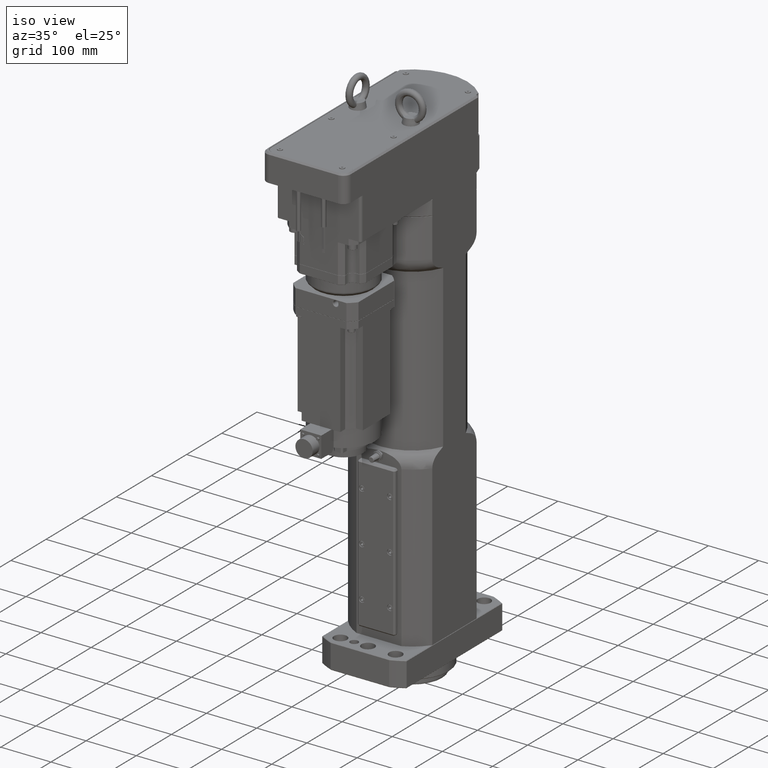
[diagram: clean part render]
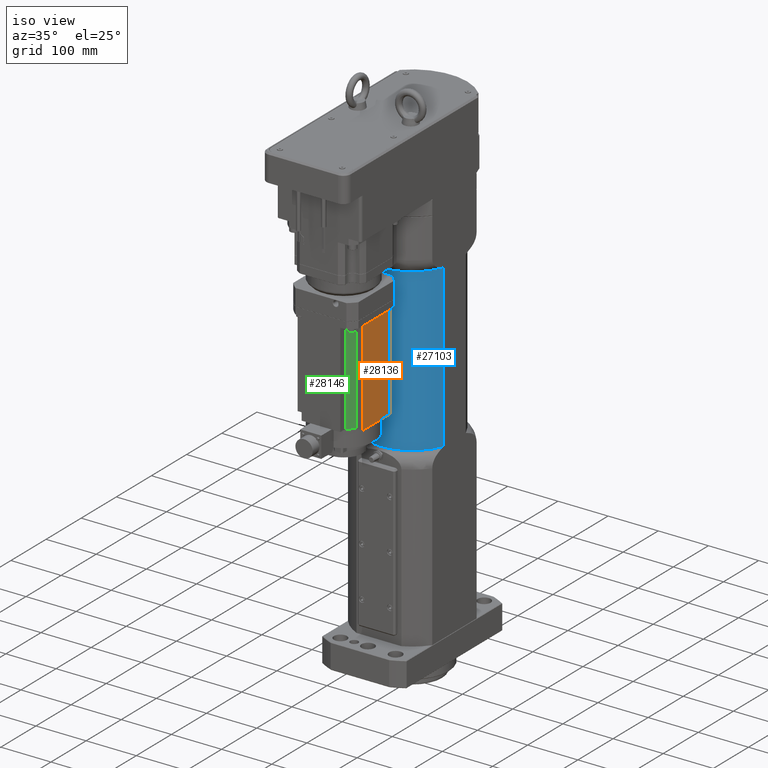
[diagram: same view with three faces highlighted in distinct colors, each labeled with its STEP entity id]
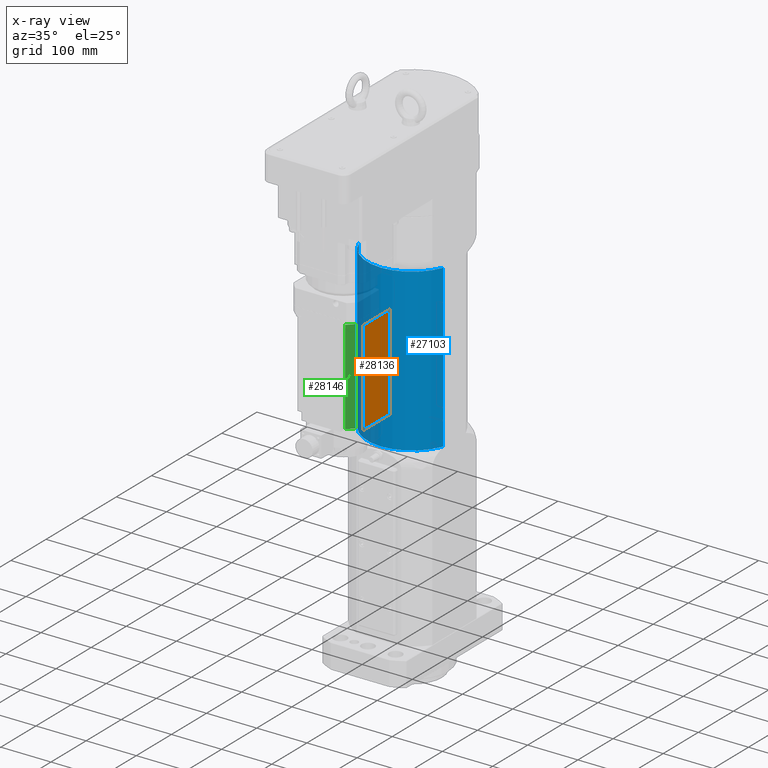
[diagram: x-ray of the same camera — body ghosted, the three highlighted faces saturated]
A machine part, iso view with three faces highlighted in distinct colors.
The next image is the same camera in x-ray (body ghosted, the three faces saturated) — at least one of them is partly hidden behind the body in this view.
Their STEP definitions:

[orange] entity #28136 — the highlighted planar face has unit normal (1, -0, 0).
#2405=LINE('',#47565,#4024);
#2426=LINE('',#47624,#4045);
#2427=LINE('',#47626,#4046);
#2428=LINE('',#47627,#4047);
#4024=VECTOR('',#36888,10.);
#4045=VECTOR('',#36949,10.);
#4046=VECTOR('',#36950,10.);
#4047=VECTOR('',#36951,10.);
#6477=FACE_OUTER_BOUND('',#8425,.T.);
#8425=EDGE_LOOP('',(#21893,#21894,#21895,#21896));
#12380=VERTEX_POINT('',#47562);
#12381=VERTEX_POINT('',#47564);
#12399=VERTEX_POINT('',#47623);
#12400=VERTEX_POINT('',#47625);
#15762=EDGE_CURVE('',#12381,#12380,#2405,.T.);
#15793=EDGE_CURVE('',#12380,#12399,#2426,.T.);
#15794=EDGE_CURVE('',#12400,#12399,#2427,.T.);
#15795=EDGE_CURVE('',#12400,#12381,#2428,.T.);
#21893=ORIENTED_EDGE('',*,*,#15793,.T.);
#21894=ORIENTED_EDGE('',*,*,#15794,.F.);
#21895=ORIENTED_EDGE('',*,*,#15795,.T.);
#21896=ORIENTED_EDGE('',*,*,#15762,.T.);
#25105=PLANE('',#30828);
#28136=ADVANCED_FACE('',(#6477),#25105,.T.);
#30828=AXIS2_PLACEMENT_3D('',#47622,#36947,#36948);
#36888=DIRECTION('',(-9.32436818060772E-16,-1.,-4.83468750875666E-30));
#36947=DIRECTION('center_axis',(1.,-9.32436818060772E-16,3.0399476265779E-15));
#36948=DIRECTION('ref_axis',(-1.4210854715202E-15,-1.,0.));
#36949=DIRECTION('',(3.0399476265779E-15,2.00012841675897E-30,-1.));
#36950=DIRECTION('',(-9.32436818060772E-16,-1.,-4.83468750875666E-30));
#36951=DIRECTION('',(-3.0399476265779E-15,-2.00012841675897E-30,1.));
#47562=CARTESIAN_POINT('',(64.9999999999957,-233.500000000004,684.999999999957));
#47564=CARTESIAN_POINT('',(64.9999999999958,-156.500000000004,684.999999999957));
#47565=CARTESIAN_POINT('',(64.9999999999958,-144.19399641775,684.999999999957));
#47622=CARTESIAN_POINT('Origin',(64.9999999999958,-144.19399641775,684.999999999957));
#47623=CARTESIAN_POINT('',(64.9999999999963,-233.500000000004,496.999999999957));
#47624=CARTESIAN_POINT('',(64.999999999996,-233.500000000004,590.999999999957));
#47625=CARTESIAN_POINT('',(64.9999999999964,-156.500000000004,496.999999999957));
#47626=CARTESIAN_POINT('',(64.9999999999964,-144.19399641775,496.999999999957));
#47627=CARTESIAN_POINT('',(64.9999999999961,-156.500000000004,590.999999999957));

[blue] entity #27103 — the highlighted cylindrical surface (partial cylindrical patch) has radius 90 mm, axis along (-0, -0, -1).
#1318=LINE('',#40047,#2937);
#1319=LINE('',#40051,#2938);
#2937=VECTOR('',#32199,10.);
#2938=VECTOR('',#32202,10.);
#5011=CYLINDRICAL_SURFACE('',#29007,90.);
#5444=FACE_OUTER_BOUND('',#7159,.T.);
#7159=EDGE_LOOP('',(#17081,#17082,#17083,#17084));
#9365=CIRCLE('',#29008,90.);
#9366=CIRCLE('',#29009,90.);
#10731=VERTEX_POINT('',#40045);
#10732=VERTEX_POINT('',#40046);
#10733=VERTEX_POINT('',#40048);
#10734=VERTEX_POINT('',#40050);
#13305=EDGE_CURVE('',#10731,#10732,#1318,.T.);
#13306=EDGE_CURVE('',#10731,#10733,#9365,.T.);
#13307=EDGE_CURVE('',#10734,#10733,#1319,.T.);
#13308=EDGE_CURVE('',#10732,#10734,#9366,.T.);
#17081=ORIENTED_EDGE('',*,*,#13305,.F.);
#17082=ORIENTED_EDGE('',*,*,#13306,.T.);
#17083=ORIENTED_EDGE('',*,*,#13307,.F.);
#17084=ORIENTED_EDGE('',*,*,#13308,.F.);
#27103=ADVANCED_FACE('',(#5444),#5011,.T.);
#29007=AXIS2_PLACEMENT_3D('',#40044,#32197,#32198);
#29008=AXIS2_PLACEMENT_3D('',#40049,#32200,#32201);
#29009=AXIS2_PLACEMENT_3D('',#40052,#32203,#32204);
#32197=DIRECTION('center_axis',(-1.55993471463611E-15,-6.00545913593838E-31,
-1.));
#32198=DIRECTION('ref_axis',(3.8857805861883E-16,1.,-1.20670231657926E-30));
#32199=DIRECTION('',(-1.55993471463611E-15,-6.00545913593838E-31,-1.));
#32200=DIRECTION('center_axis',(-1.55993471463611E-15,-6.00545913593838E-31,
-1.));
#32201=DIRECTION('ref_axis',(-1.,3.8857805861883E-16,1.55993471463611E-15));
#32202=DIRECTION('',(1.55993471463611E-15,6.00545913593838E-31,1.));
#32203=DIRECTION('center_axis',(-1.55993471463611E-15,-6.00545913593838E-31,
-1.));
#32204=DIRECTION('ref_axis',(-1.,3.8857805861883E-16,1.55993471463611E-15));
#40044=CARTESIAN_POINT('Origin',(-7.45260732035365E-13,-1.51469799238942E-28,
556.999999999958));
#40045=CARTESIAN_POINT('',(83.9999999999995,-32.3109888428071,717.999999999958));
#40046=CARTESIAN_POINT('',(83.999999999999,-32.3109888428071,395.999999999958));
#40047=CARTESIAN_POINT('',(83.9999999999992,-32.3109888428071,556.999999999958));
#40048=CARTESIAN_POINT('',(-84.0000000000005,-32.310988842807,717.999999999958));
#40049=CARTESIAN_POINT('Origin',(-4.9411124297895E-13,-5.47819071503336E-29,
717.999999999958));
#40050=CARTESIAN_POINT('',(-84.000000000001,-32.310988842807,395.999999999958));
#40051=CARTESIAN_POINT('',(-84.0000000000008,-32.310988842807,556.999999999958));
#40052=CARTESIAN_POINT('Origin',(-9.96410221091779E-13,-2.48157691327549E-28,
395.999999999958));

[green] entity #28146 — the highlighted cylindrical surface (partial cylindrical patch) has radius 64 mm, axis along (-0, -0, 1).
#2448=LINE('',#47676,#4067);
#2449=LINE('',#47678,#4068);
#4067=VECTOR('',#37001,10.);
#4068=VECTOR('',#37004,10.);
#5229=CYLINDRICAL_SURFACE('',#30844,64.);
#6487=FACE_OUTER_BOUND('',#8435,.T.);
#8435=EDGE_LOOP('',(#21949,#21950,#21951,#21952));
#10116=CIRCLE('',#30826,64.);
#10121=CIRCLE('',#30833,64.);
#12396=VERTEX_POINT('',#47615);
#12397=VERTEX_POINT('',#47617);
#12410=VERTEX_POINT('',#47649);
#12411=VERTEX_POINT('',#47651);
#15790=EDGE_CURVE('',#12396,#12397,#10116,.T.);
#15808=EDGE_CURVE('',#12410,#12411,#10121,.T.);
#15821=EDGE_CURVE('',#12410,#12397,#2448,.T.);
#15822=EDGE_CURVE('',#12411,#12396,#2449,.T.);
#21949=ORIENTED_EDGE('',*,*,#15808,.F.);
#21950=ORIENTED_EDGE('',*,*,#15821,.T.);
#21951=ORIENTED_EDGE('',*,*,#15790,.F.);
#21952=ORIENTED_EDGE('',*,*,#15822,.F.);
#28146=ADVANCED_FACE('',(#6487),#5229,.T.);
#30826=AXIS2_PLACEMENT_3D('',#47618,#36942,#36943);
#30833=AXIS2_PLACEMENT_3D('',#47652,#36969,#36970);
#30844=AXIS2_PLACEMENT_3D('',#47677,#37002,#37003);
#36942=DIRECTION('center_axis',(-3.0399476265779E-15,-2.00012841675897E-30,
1.));
#36943=DIRECTION('ref_axis',(-1.,1.36948084685462E-15,-3.0399476265779E-15));
#36969=DIRECTION('center_axis',(3.0399476265779E-15,2.00012841675897E-30,
-1.));
#36970=DIRECTION('ref_axis',(-1.,1.36948084685462E-15,-3.0399476265779E-15));
#37001=DIRECTION('',(-3.0399476265779E-15,-2.00012841675897E-30,1.));
#37002=DIRECTION('center_axis',(-3.0399476265779E-15,-2.00012841675897E-30,
1.));
#37003=DIRECTION('ref_axis',(-1.,1.36948084685462E-15,-3.0399476265779E-15));
#37004=DIRECTION('',(-3.0399476265779E-15,-2.00012841675897E-30,1.));
#47615=CARTESIAN_POINT('',(38.4999999999957,-246.12484718804,684.999999999957));
#47617=CARTESIAN_POINT('',(51.1248471880314,-233.500000000004,684.999999999957));
#47618=CARTESIAN_POINT('Origin',(-4.23140658109E-12,-195.000000000004,684.999999999957));
#47649=CARTESIAN_POINT('',(51.124847188032,-233.500000000004,496.999999999957));
#47651=CARTESIAN_POINT('',(38.4999999999963,-246.12484718804,496.999999999957));
#47652=CARTESIAN_POINT('Origin',(-3.65989642729335E-12,-195.000000000004,
496.999999999956));
#47676=CARTESIAN_POINT('',(51.124847188032,-233.500000000004,496.999999999957));
#47677=CARTESIAN_POINT('Origin',(-3.65989642729335E-12,-195.000000000004,
496.999999999956));
#47678=CARTESIAN_POINT('',(38.4999999999963,-246.12484718804,496.999999999957));